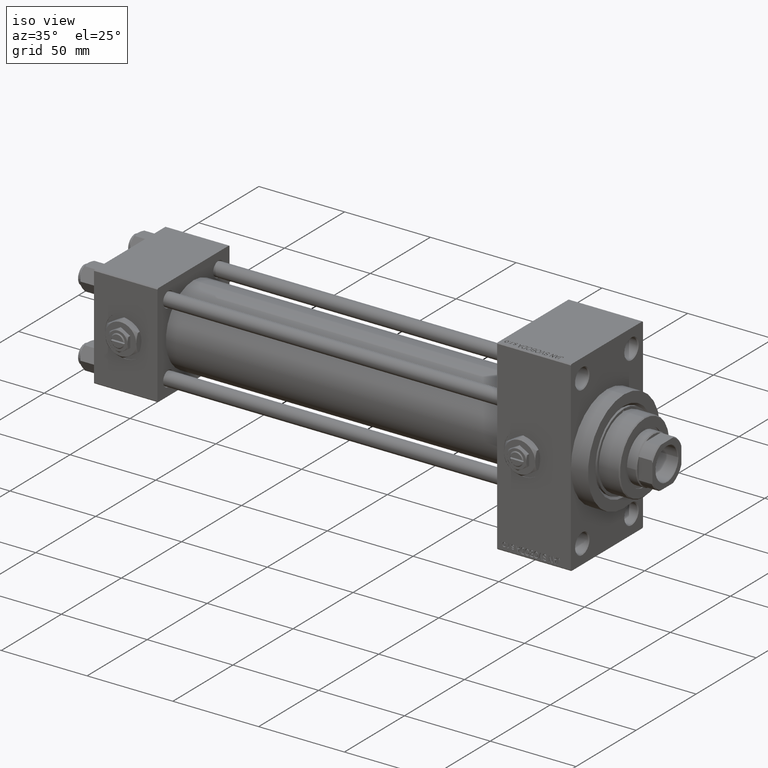
[diagram: clean part render]
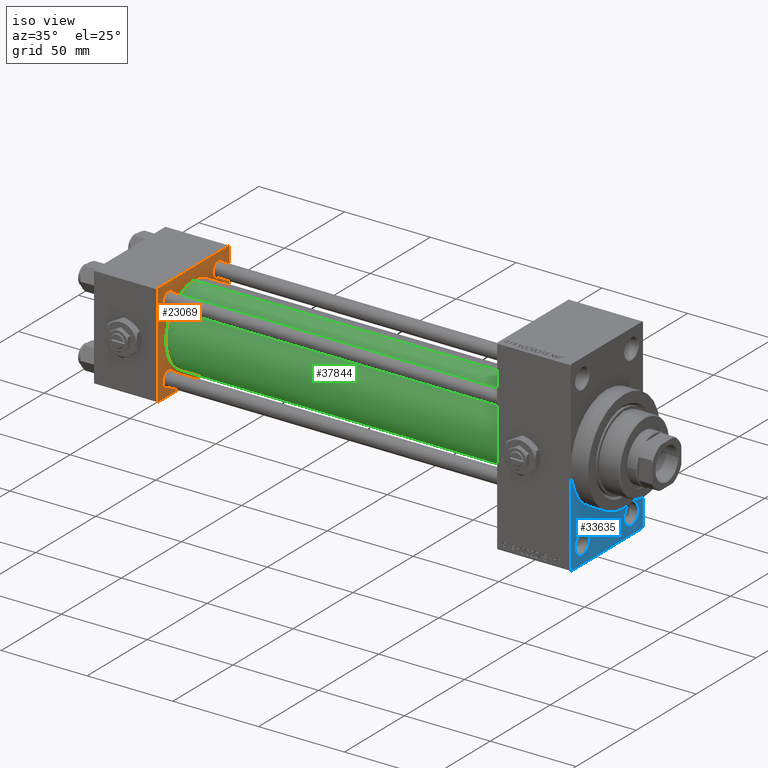
[diagram: same view with three faces highlighted in distinct colors, each labeled with its STEP entity id]
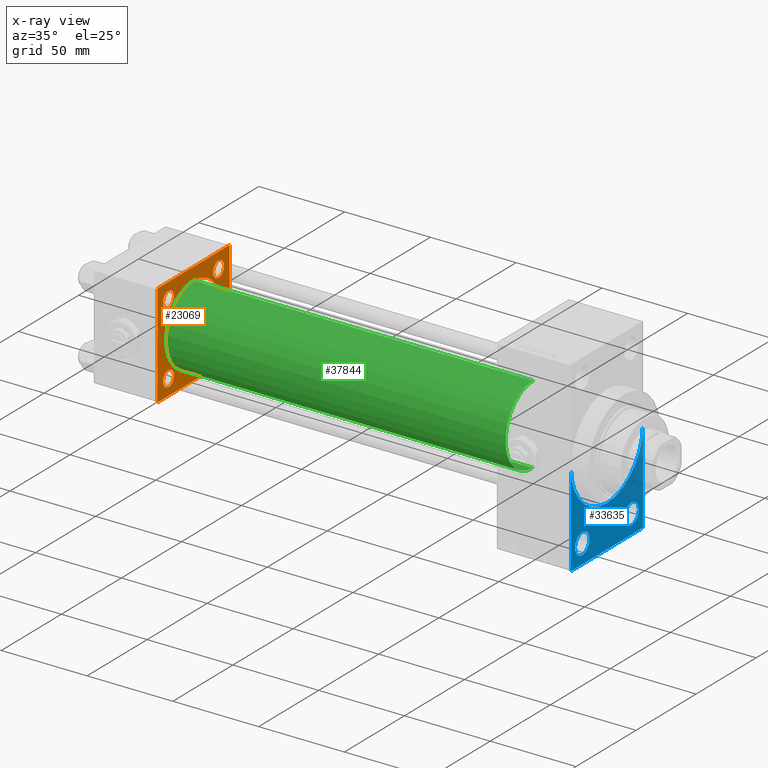
[diagram: x-ray of the same camera — body ghosted, the three highlighted faces saturated]
A machine part, iso view with three faces highlighted in distinct colors.
The next image is the same camera in x-ray (body ghosted, the three faces saturated) — at least one of them is partly hidden behind the body in this view.
Their STEP definitions:

[orange] entity #23069 — the highlighted planar face has unit normal (-1, 0, 0).
#52 = ORIENTED_EDGE ( 'NONE', *, *, #4383, .T. ) ;
#277 = CARTESIAN_POINT ( 'NONE',  ( 37.00000000000000000, 29.99999999999999289, 30.00000000000000000 ) ) ;
#494 = EDGE_LOOP ( 'NONE', ( #42556, #32387 ) ) ;
#504 = EDGE_CURVE ( 'NONE', #41330, #26003, #39535, .T. ) ;
#661 = CARTESIAN_POINT ( 'NONE',  ( 37.00000000000000000, 29.99999999999999289, -30.00000000000000000 ) ) ;
#917 = DIRECTION ( 'NONE',  ( 0.000000000000000000, 0.000000000000000000, 1.000000000000000000 ) ) ;
#941 = CARTESIAN_POINT ( 'NONE',  ( 37.00000000000000000, 20.84999999999999787, 25.35000000000000497 ) ) ;
#1071 = EDGE_CURVE ( 'NONE', #21487, #1513, #30667, .T. ) ;
#1513 = VERTEX_POINT ( 'NONE', #16069 ) ;
#2589 = CARTESIAN_POINT ( 'NONE',  ( 37.00000000000000000, -20.84999999999999076, 16.35000000000000142 ) ) ;
#2718 = CARTESIAN_POINT ( 'NONE',  ( 37.00000000000000711, -2.602085213965210642E-15, 23.00000000000000000 ) ) ;
#2784 = LINE ( 'NONE', #32874, #41670 ) ;
#3456 = CARTESIAN_POINT ( 'NONE',  ( 37.00000000000000000, 20.84999999999999787, 20.85000000000000142 ) ) ;
#3702 = CIRCLE ( 'NONE', #26949, 4.500000000000003553 ) ;
#4045 = ORIENTED_EDGE ( 'NONE', *, *, #27006, .T. ) ;
#4175 = ORIENTED_EDGE ( 'NONE', *, *, #8318, .T. ) ;
#4297 = FACE_BOUND ( 'NONE', #35256, .T. ) ;
#4374 = AXIS2_PLACEMENT_3D ( 'NONE', #6062, #5070, #5802 ) ;
#4383 = EDGE_CURVE ( 'NONE', #17724, #21237, #41177, .T. ) ;
#4762 = CARTESIAN_POINT ( 'NONE',  ( 37.00000000000000000, 20.84999999999999787, -20.85000000000000142 ) ) ;
#4948 = VERTEX_POINT ( 'NONE', #30465 ) ;
#5070 = DIRECTION ( 'NONE',  ( -1.000000000000000000, 0.000000000000000000, -0.000000000000000000 ) ) ;
#5161 = AXIS2_PLACEMENT_3D ( 'NONE', #3456, #45838, #30543 ) ;
#5301 = LINE ( 'NONE', #43903, #44220 ) ;
#5802 = DIRECTION ( 'NONE',  ( 0.000000000000000000, 0.000000000000000000, 1.000000000000000000 ) ) ;
#5851 = CARTESIAN_POINT ( 'NONE',  ( 37.00000000000000000, -20.84999999999999076, 20.85000000000000497 ) ) ;
#6062 = CARTESIAN_POINT ( 'NONE',  ( 37.00000000000000000, 20.84999999999999787, 20.85000000000000142 ) ) ;
#6249 = VERTEX_POINT ( 'NONE', #35162 ) ;
#6836 = VECTOR ( 'NONE', #23103, 1000.000000000000000 ) ;
#6990 = EDGE_LOOP ( 'NONE', ( #29220, #33628 ) ) ;
#7055 = CARTESIAN_POINT ( 'NONE',  ( 37.00000000000000000, -29.50000000000000000, -30.00000000000000711 ) ) ;
#7180 = ORIENTED_EDGE ( 'NONE', *, *, #9999, .T. ) ;
#8167 = DIRECTION ( 'NONE',  ( 0.000000000000000000, -1.000000000000000000, -1.156482317317871725E-16 ) ) ;
#8318 = EDGE_CURVE ( 'NONE', #48864, #4948, #45090, .T. ) ;
#8346 = LINE ( 'NONE', #16855, #35874 ) ;
#8458 = DIRECTION ( 'NONE',  ( -1.000000000000000000, 0.000000000000000000, -0.000000000000000000 ) ) ;
#8560 = VECTOR ( 'NONE', #14157, 999.9999999999998863 ) ;
#8737 = CARTESIAN_POINT ( 'NONE',  ( 37.00000000000000000, 20.84999999999999787, 16.34999999999999787 ) ) ;
#9633 = EDGE_CURVE ( 'NONE', #43434, #6249, #25363, .T. ) ;
#9697 = ORIENTED_EDGE ( 'NONE', *, *, #19472, .T. ) ;
#9821 = EDGE_CURVE ( 'NONE', #16755, #46251, #40725, .T. ) ;
#9999 = EDGE_CURVE ( 'NONE', #26003, #41330, #29383, .T. ) ;
#10148 = VERTEX_POINT ( 'NONE', #7055 ) ;
#10188 = CARTESIAN_POINT ( 'NONE',  ( 37.00000000000000000, 29.49999999999997868, -30.00000000000000000 ) ) ;
#11489 = EDGE_CURVE ( 'NONE', #43134, #11506, #30248, .T. ) ;
#11506 = VERTEX_POINT ( 'NONE', #2589 ) ;
#11594 = CARTESIAN_POINT ( 'NONE',  ( 37.00000000000000000, -20.84999999999999076, -25.35000000000000853 ) ) ;
#11613 = DIRECTION ( 'NONE',  ( 0.000000000000000000, -0.7071067811865474617, 0.7071067811865474617 ) ) ;
#11788 = AXIS2_PLACEMENT_3D ( 'NONE', #21377, #28154, #12620 ) ;
#12317 = AXIS2_PLACEMENT_3D ( 'NONE', #39769, #8458, #16233 ) ;
#12559 = DIRECTION ( 'NONE',  ( -0.000000000000000000, 0.000000000000000000, 1.000000000000000000 ) ) ;
#12620 = DIRECTION ( 'NONE',  ( 0.000000000000000000, 0.000000000000000000, 1.000000000000000000 ) ) ;
#12795 = DIRECTION ( 'NONE',  ( -1.000000000000000000, 0.000000000000000000, -0.000000000000000000 ) ) ;
#13263 = EDGE_CURVE ( 'NONE', #26499, #48864, #8346, .T. ) ;
#13494 = CARTESIAN_POINT ( 'NONE',  ( 37.00000000000000000, -29.49999999999998579, 29.99999999999999289 ) ) ;
#13617 = DIRECTION ( 'NONE',  ( -1.000000000000000000, 0.000000000000000000, -0.000000000000000000 ) ) ;
#13732 = VERTEX_POINT ( 'NONE', #35611 ) ;
#13824 = ORIENTED_EDGE ( 'NONE', *, *, #13263, .T. ) ;
#14157 = DIRECTION ( 'NONE',  ( -0.000000000000000000, 0.7071067811865574537, 0.7071067811865376918 ) ) ;
#14589 = CARTESIAN_POINT ( 'NONE',  ( 37.00000000000000000, -30.00000000000000000, 29.49999999999999289 ) ) ;
#14971 = ORIENTED_EDGE ( 'NONE', *, *, #34988, .T. ) ;
#15068 = ORIENTED_EDGE ( 'NONE', *, *, #44076, .F. ) ;
#15589 = PLANE ( 'NONE',  #33652 ) ;
#15966 = DIRECTION ( 'NONE',  ( 1.000000000000000000, -0.000000000000000000, 0.000000000000000000 ) ) ;
#16069 = CARTESIAN_POINT ( 'NONE',  ( 37.00000000000000000, 29.49999999999999289, 30.00000000000000000 ) ) ;
#16233 = DIRECTION ( 'NONE',  ( 0.000000000000000000, 0.000000000000000000, 1.000000000000000000 ) ) ;
#16283 = DIRECTION ( 'NONE',  ( 0.000000000000000000, 0.000000000000000000, 1.000000000000000000 ) ) ;
#16617 = DIRECTION ( 'NONE',  ( -0.000000000000000000, -0.7071067811865474617, -0.7071067811865474617 ) ) ;
#16755 = VERTEX_POINT ( 'NONE', #10188 ) ;
#16855 = CARTESIAN_POINT ( 'NONE',  ( 37.00000000000000000, -30.00000000000000000, 29.49999999999999289 ) ) ;
#17114 = CIRCLE ( 'NONE', #45143, 23.00000000000000000 ) ;
#17603 = ORIENTED_EDGE ( 'NONE', *, *, #11489, .T. ) ;
#17724 = VERTEX_POINT ( 'NONE', #941 ) ;
#17935 = VECTOR ( 'NONE', #11613, 1000.000000000000114 ) ;
#18087 = VECTOR ( 'NONE', #8167, 1000.000000000000000 ) ;
#19472 = EDGE_CURVE ( 'NONE', #4948, #10148, #2784, .T. ) ;
#19842 = FACE_OUTER_BOUND ( 'NONE', #46564, .T. ) ;
#20050 = DIRECTION ( 'NONE',  ( -1.000000000000000000, 0.000000000000000000, -0.000000000000000000 ) ) ;
#20598 = DIRECTION ( 'NONE',  ( 0.000000000000000000, -1.000000000000000000, -1.156482317317871725E-16 ) ) ;
#21146 = DIRECTION ( 'NONE',  ( 0.000000000000000000, 0.000000000000000000, 1.000000000000000000 ) ) ;
#21237 = VERTEX_POINT ( 'NONE', #8737 ) ;
#21377 = CARTESIAN_POINT ( 'NONE',  ( 37.00000000000000000, -20.84999999999999076, -20.85000000000000497 ) ) ;
#21487 = VERTEX_POINT ( 'NONE', #31022 ) ;
#22875 = AXIS2_PLACEMENT_3D ( 'NONE', #4762, #20050, #16283 ) ;
#23069 = ADVANCED_FACE ( 'NONE', ( #4297, #35361, #38890, #39603, #27131, #19842 ), #15589, .F. ) ;
#23103 = DIRECTION ( 'NONE',  ( 0.000000000000000000, 0.000000000000000000, -1.000000000000000000 ) ) ;
#23873 = ORIENTED_EDGE ( 'NONE', *, *, #41207, .T. ) ;
#24399 = CIRCLE ( 'NONE', #5161, 4.500000000000003553 ) ;
#25363 = CIRCLE ( 'NONE', #31753, 23.00000000000000000 ) ;
#26003 = VERTEX_POINT ( 'NONE', #11594 ) ;
#26499 = VERTEX_POINT ( 'NONE', #13494 ) ;
#26949 = AXIS2_PLACEMENT_3D ( 'NONE', #33575, #32596, #47893 ) ;
#27006 = EDGE_CURVE ( 'NONE', #1513, #26499, #5301, .T. ) ;
#27131 = FACE_BOUND ( 'NONE', #494, .T. ) ;
#28154 = DIRECTION ( 'NONE',  ( -1.000000000000000000, 0.000000000000000000, -0.000000000000000000 ) ) ;
#28183 = DIRECTION ( 'NONE',  ( -1.000000000000000000, 0.000000000000000000, -0.000000000000000000 ) ) ;
#29112 = DIRECTION ( 'NONE',  ( 0.000000000000000000, 0.7071067811865474617, -0.7071067811865474617 ) ) ;
#29220 = ORIENTED_EDGE ( 'NONE', *, *, #34812, .T. ) ;
#29383 = CIRCLE ( 'NONE', #11788, 4.500000000000003553 ) ;
#29484 = AXIS2_PLACEMENT_3D ( 'NONE', #5851, #28183, #21146 ) ;
#29685 = CARTESIAN_POINT ( 'NONE',  ( 37.00000000000000000, 20.84999999999999787, -25.35000000000000497 ) ) ;
#30248 = CIRCLE ( 'NONE', #47845, 4.500000000000003553 ) ;
#30337 = EDGE_CURVE ( 'NONE', #6249, #43434, #17114, .T. ) ;
#30465 = CARTESIAN_POINT ( 'NONE',  ( 37.00000000000000000, -30.00000000000000000, -29.50000000000001776 ) ) ;
#30543 = DIRECTION ( 'NONE',  ( 0.000000000000000000, 0.000000000000000000, 1.000000000000000000 ) ) ;
#30667 = LINE ( 'NONE', #45966, #17935 ) ;
#31022 = CARTESIAN_POINT ( 'NONE',  ( 37.00000000000000000, 29.99999999999999289, 29.50000000000000000 ) ) ;
#31753 = AXIS2_PLACEMENT_3D ( 'NONE', #46557, #15966, #917 ) ;
#31831 = CARTESIAN_POINT ( 'NONE',  ( 37.00000000000000000, -20.84999999999999076, -16.35000000000000142 ) ) ;
#32387 = ORIENTED_EDGE ( 'NONE', *, *, #30337, .F. ) ;
#32596 = DIRECTION ( 'NONE',  ( -1.000000000000000000, 0.000000000000000000, -0.000000000000000000 ) ) ;
#32874 = CARTESIAN_POINT ( 'NONE',  ( 37.00000000000000000, -29.50000000000001066, -30.00000000000000711 ) ) ;
#33528 = ORIENTED_EDGE ( 'NONE', *, *, #504, .T. ) ;
#33575 = CARTESIAN_POINT ( 'NONE',  ( 37.00000000000000000, 20.84999999999999787, -20.85000000000000142 ) ) ;
#33628 = ORIENTED_EDGE ( 'NONE', *, *, #47901, .T. ) ;
#33652 = AXIS2_PLACEMENT_3D ( 'NONE', #47153, #12795, #12559 ) ;
#33804 = DIRECTION ( 'NONE',  ( 0.000000000000000000, 0.000000000000000000, -1.000000000000000000 ) ) ;
#34378 = EDGE_LOOP ( 'NONE', ( #23873, #17603 ) ) ;
#34627 = ORIENTED_EDGE ( 'NONE', *, *, #9821, .T. ) ;
#34774 = CIRCLE ( 'NONE', #22875, 4.500000000000003553 ) ;
#34812 = EDGE_CURVE ( 'NONE', #46086, #13732, #34774, .T. ) ;
#34988 = EDGE_CURVE ( 'NONE', #21237, #17724, #24399, .T. ) ;
#35162 = CARTESIAN_POINT ( 'NONE',  ( 37.00000000000000711, 2.146024240737016609E-16, -23.00000000000000000 ) ) ;
#35256 = EDGE_LOOP ( 'NONE', ( #7180, #33528 ) ) ;
#35361 = FACE_BOUND ( 'NONE', #6990, .T. ) ;
#35570 = CARTESIAN_POINT ( 'NONE',  ( 37.00000000000000711, -2.602085213965210642E-15, 0.000000000000000000 ) ) ;
#35611 = CARTESIAN_POINT ( 'NONE',  ( 37.00000000000000000, 20.84999999999999787, -16.34999999999999787 ) ) ;
#35874 = VECTOR ( 'NONE', #16617, 1000.000000000000114 ) ;
#38890 = FACE_BOUND ( 'NONE', #34378, .T. ) ;
#39535 = CIRCLE ( 'NONE', #12317, 4.500000000000003553 ) ;
#39603 = FACE_BOUND ( 'NONE', #42706, .T. ) ;
#39769 = CARTESIAN_POINT ( 'NONE',  ( 37.00000000000000000, -20.84999999999999076, -20.85000000000000497 ) ) ;
#39878 = CIRCLE ( 'NONE', #29484, 4.500000000000003553 ) ;
#40685 = CARTESIAN_POINT ( 'NONE',  ( 37.00000000000000000, -20.84999999999999076, 20.85000000000000497 ) ) ;
#40725 = LINE ( 'NONE', #44981, #8560 ) ;
#41177 = CIRCLE ( 'NONE', #4374, 4.500000000000003553 ) ;
#41207 = EDGE_CURVE ( 'NONE', #11506, #43134, #39878, .T. ) ;
#41330 = VERTEX_POINT ( 'NONE', #31831 ) ;
#41670 = VECTOR ( 'NONE', #29112, 1000.000000000000114 ) ;
#42380 = CARTESIAN_POINT ( 'NONE',  ( 37.00000000000000000, -20.84999999999999076, 25.35000000000000853 ) ) ;
#42512 = LINE ( 'NONE', #661, #18087 ) ;
#42556 = ORIENTED_EDGE ( 'NONE', *, *, #9633, .F. ) ;
#42622 = LINE ( 'NONE', #277, #6836 ) ;
#42706 = EDGE_LOOP ( 'NONE', ( #14971, #52 ) ) ;
#43100 = EDGE_CURVE ( 'NONE', #21487, #46251, #42622, .T. ) ;
#43134 = VERTEX_POINT ( 'NONE', #42380 ) ;
#43434 = VERTEX_POINT ( 'NONE', #2718 ) ;
#43596 = DIRECTION ( 'NONE',  ( 0.000000000000000000, 0.000000000000000000, 1.000000000000000000 ) ) ;
#43903 = CARTESIAN_POINT ( 'NONE',  ( 37.00000000000000000, 29.99999999999999289, 30.00000000000000000 ) ) ;
#44076 = EDGE_CURVE ( 'NONE', #16755, #10148, #42512, .T. ) ;
#44220 = VECTOR ( 'NONE', #20598, 1000.000000000000000 ) ;
#44453 = DIRECTION ( 'NONE',  ( 0.000000000000000000, 0.000000000000000000, 1.000000000000000000 ) ) ;
#44981 = CARTESIAN_POINT ( 'NONE',  ( 37.00000000000000000, 29.99999999999999289, -29.50000000000000000 ) ) ;
#45090 = LINE ( 'NONE', #49373, #49327 ) ;
#45143 = AXIS2_PLACEMENT_3D ( 'NONE', #35570, #46893, #43596 ) ;
#45838 = DIRECTION ( 'NONE',  ( -1.000000000000000000, 0.000000000000000000, -0.000000000000000000 ) ) ;
#45966 = CARTESIAN_POINT ( 'NONE',  ( 37.00000000000000000, 29.49999999999999289, 30.00000000000000000 ) ) ;
#46086 = VERTEX_POINT ( 'NONE', #29685 ) ;
#46251 = VERTEX_POINT ( 'NONE', #48934 ) ;
#46557 = CARTESIAN_POINT ( 'NONE',  ( 37.00000000000000711, -2.602085213965210642E-15, 0.000000000000000000 ) ) ;
#46564 = EDGE_LOOP ( 'NONE', ( #15068, #34627, #46818, #48263, #4045, #13824, #4175, #9697 ) ) ;
#46818 = ORIENTED_EDGE ( 'NONE', *, *, #43100, .F. ) ;
#46893 = DIRECTION ( 'NONE',  ( 1.000000000000000000, -0.000000000000000000, 0.000000000000000000 ) ) ;
#47153 = CARTESIAN_POINT ( 'NONE',  ( 37.00000000000000000, 0.000000000000000000, 0.000000000000000000 ) ) ;
#47845 = AXIS2_PLACEMENT_3D ( 'NONE', #40685, #13617, #44453 ) ;
#47893 = DIRECTION ( 'NONE',  ( 0.000000000000000000, 0.000000000000000000, 1.000000000000000000 ) ) ;
#47901 = EDGE_CURVE ( 'NONE', #13732, #46086, #3702, .T. ) ;
#48263 = ORIENTED_EDGE ( 'NONE', *, *, #1071, .T. ) ;
#48864 = VERTEX_POINT ( 'NONE', #14589 ) ;
#48934 = CARTESIAN_POINT ( 'NONE',  ( 37.00000000000000000, 29.99999999999999289, -29.50000000000000000 ) ) ;
#49327 = VECTOR ( 'NONE', #33804, 1000.000000000000000 ) ;
#49373 = CARTESIAN_POINT ( 'NONE',  ( 37.00000000000000000, -30.00000000000000000, 29.99999999999999289 ) ) ;

[blue] entity #33635 — the highlighted planar face has unit normal (-1, 0, 0).
#90 = DIRECTION ( 'NONE',  ( 0.000000000000000000, 0.000000000000000000, 1.000000000000000000 ) ) ;
#506 = AXIS2_PLACEMENT_3D ( 'NONE', #29014, #29753, #10209 ) ;
#713 = DIRECTION ( 'NONE',  ( 0.000000000000000000, 0.7071067811865352493, -0.7071067811865597852 ) ) ;
#842 = EDGE_CURVE ( 'NONE', #31903, #42642, #13127, .T. ) ;
#1806 = CARTESIAN_POINT ( 'NONE',  ( 278.0000000000000000, 29.99999999999999645, -53.99999999999996447 ) ) ;
#2534 = CARTESIAN_POINT ( 'NONE',  ( 278.0000000000000000, 3.673940397442059178E-15, -30.00000000000000000 ) ) ;
#2563 = CIRCLE ( 'NONE', #25793, 30.00000000000000000 ) ;
#3392 = CARTESIAN_POINT ( 'NONE',  ( 278.0000000000000000, 0.000000000000000000, 0.000000000000000000 ) ) ;
#4786 = VERTEX_POINT ( 'NONE', #32814 ) ;
#4845 = VERTEX_POINT ( 'NONE', #41061 ) ;
#5242 = CARTESIAN_POINT ( 'NONE',  ( 278.0000000000000000, 20.50000000000000000, -49.50000000000019895 ) ) ;
#6212 = EDGE_CURVE ( 'NONE', #43380, #37330, #12432, .T. ) ;
#6282 = FACE_BOUND ( 'NONE', #36887, .T. ) ;
#6377 = ORIENTED_EDGE ( 'NONE', *, *, #26485, .F. ) ;
#7007 = PLANE ( 'NONE',  #30040 ) ;
#7505 = ORIENTED_EDGE ( 'NONE', *, *, #26458, .F. ) ;
#7668 = ORIENTED_EDGE ( 'NONE', *, *, #35037, .T. ) ;
#7855 = VERTEX_POINT ( 'NONE', #1806 ) ;
#8478 = ORIENTED_EDGE ( 'NONE', *, *, #48140, .T. ) ;
#8552 = VERTEX_POINT ( 'NONE', #48062 ) ;
#8928 = CARTESIAN_POINT ( 'NONE',  ( 278.0000000000000000, -29.50000000000002842, -54.50000000000000000 ) ) ;
#10209 = DIRECTION ( 'NONE',  ( 0.000000000000000000, 0.000000000000000000, 1.000000000000000000 ) ) ;
#10875 = CIRCLE ( 'NONE', #38928, 6.000000000000199840 ) ;
#11303 = DIRECTION ( 'NONE',  ( 0.000000000000000000, 0.000000000000000000, -1.000000000000000000 ) ) ;
#12432 = CIRCLE ( 'NONE', #46091, 6.000000000000199840 ) ;
#12530 = CARTESIAN_POINT ( 'NONE',  ( 278.0000000000000000, 0.000000000000000000, 0.000000000000000000 ) ) ;
#13127 = LINE ( 'NONE', #28432, #33135 ) ;
#13491 = EDGE_CURVE ( 'NONE', #46318, #4845, #26359, .T. ) ;
#13740 = DIRECTION ( 'NONE',  ( 0.000000000000000000, 0.000000000000000000, -1.000000000000000000 ) ) ;
#14045 = FACE_BOUND ( 'NONE', #39740, .T. ) ;
#14117 = ORIENTED_EDGE ( 'NONE', *, *, #6212, .T. ) ;
#15273 = CARTESIAN_POINT ( 'NONE',  ( 278.0000000000000000, -20.50000000000000000, -37.49999999999979394 ) ) ;
#16205 = ORIENTED_EDGE ( 'NONE', *, *, #43011, .T. ) ;
#16688 = VECTOR ( 'NONE', #11303, 1000.000000000000000 ) ;
#16750 = ORIENTED_EDGE ( 'NONE', *, *, #27465, .T. ) ;
#18550 = EDGE_CURVE ( 'NONE', #46318, #30051, #22432, .T. ) ;
#18598 = CIRCLE ( 'NONE', #41819, 6.000000000000199840 ) ;
#18687 = DIRECTION ( 'NONE',  ( 0.000000000000000000, 0.000000000000000000, -1.000000000000000000 ) ) ;
#18705 = CARTESIAN_POINT ( 'NONE',  ( 278.0000000000000000, -20.50000000000000000, -43.50000000000000000 ) ) ;
#18749 = EDGE_LOOP ( 'NONE', ( #21490, #7668, #29137, #16205, #6377, #7505, #47884 ) ) ;
#19023 = CARTESIAN_POINT ( 'NONE',  ( 278.0000000000000000, 20.50000000000000000, -43.50000000000000000 ) ) ;
#19146 = CARTESIAN_POINT ( 'NONE',  ( 278.0000000000000000, 20.50000000000000000, -43.50000000000000000 ) ) ;
#20055 = DIRECTION ( 'NONE',  ( 1.000000000000000000, 0.000000000000000000, 0.000000000000000000 ) ) ;
#21086 = CARTESIAN_POINT ( 'NONE',  ( 278.0000000000000000, 29.99999999999999645, -53.99999999999996447 ) ) ;
#21490 = ORIENTED_EDGE ( 'NONE', *, *, #13491, .T. ) ;
#22432 = CIRCLE ( 'NONE', #28050, 30.00000000000000000 ) ;
#22606 = VERTEX_POINT ( 'NONE', #15273 ) ;
#22702 = CARTESIAN_POINT ( 'NONE',  ( 278.0000000000000000, 29.99999999999999645, 54.49999999999999289 ) ) ;
#23039 = CARTESIAN_POINT ( 'NONE',  ( 278.0000000000000000, -29.50000000000002842, -54.50000000000000000 ) ) ;
#24534 = CIRCLE ( 'NONE', #506, 6.000000000000199840 ) ;
#25049 = DIRECTION ( 'NONE',  ( 1.000000000000000000, 0.000000000000000000, 0.000000000000000000 ) ) ;
#25793 = AXIS2_PLACEMENT_3D ( 'NONE', #3392, #25049, #13740 ) ;
#26118 = CARTESIAN_POINT ( 'NONE',  ( 278.0000000000000000, -30.00000000000000000, 0.000000000000000000 ) ) ;
#26359 = LINE ( 'NONE', #49166, #16688 ) ;
#26458 = EDGE_CURVE ( 'NONE', #30051, #8552, #2563, .T. ) ;
#26485 = EDGE_CURVE ( 'NONE', #8552, #7855, #32548, .T. ) ;
#26807 = VECTOR ( 'NONE', #713, 1000.000000000000000 ) ;
#27242 = CARTESIAN_POINT ( 'NONE',  ( 278.0000000000000000, 29.49999999999999645, -54.49999999999999289 ) ) ;
#27465 = EDGE_CURVE ( 'NONE', #37330, #43380, #18598, .T. ) ;
#28050 = AXIS2_PLACEMENT_3D ( 'NONE', #12530, #20055, #42377 ) ;
#28364 = DIRECTION ( 'NONE',  ( -0.000000000000000000, 0.7071067811865279218, 0.7071067811865672237 ) ) ;
#28432 = CARTESIAN_POINT ( 'NONE',  ( 278.0000000000000000, 29.99999999999999645, -54.49999999999999289 ) ) ;
#28543 = CARTESIAN_POINT ( 'NONE',  ( 278.0000000000000000, 20.50000000000000000, -37.49999999999979394 ) ) ;
#28850 = LINE ( 'NONE', #21086, #42860 ) ;
#29014 = CARTESIAN_POINT ( 'NONE',  ( 278.0000000000000000, -20.50000000000000000, -43.50000000000000000 ) ) ;
#29137 = ORIENTED_EDGE ( 'NONE', *, *, #842, .F. ) ;
#29341 = FACE_OUTER_BOUND ( 'NONE', #18749, .T. ) ;
#29585 = DIRECTION ( 'NONE',  ( -0.000000000000000000, 0.000000000000000000, 1.000000000000000000 ) ) ;
#29753 = DIRECTION ( 'NONE',  ( -1.000000000000000000, 0.000000000000000000, -0.000000000000000000 ) ) ;
#30040 = AXIS2_PLACEMENT_3D ( 'NONE', #44877, #44383, #29585 ) ;
#30051 = VERTEX_POINT ( 'NONE', #2534 ) ;
#30238 = DIRECTION ( 'NONE',  ( 0.000000000000000000, 0.000000000000000000, 1.000000000000000000 ) ) ;
#30800 = DIRECTION ( 'NONE',  ( 0.000000000000000000, 0.000000000000000000, 1.000000000000000000 ) ) ;
#31903 = VERTEX_POINT ( 'NONE', #27242 ) ;
#32548 = LINE ( 'NONE', #22702, #36979 ) ;
#32814 = CARTESIAN_POINT ( 'NONE',  ( 278.0000000000000000, -20.50000000000000000, -49.50000000000019895 ) ) ;
#33135 = VECTOR ( 'NONE', #43723, 1000.000000000000000 ) ;
#33635 = ADVANCED_FACE ( 'NONE', ( #6282, #14045, #29341 ), #7007, .F. ) ;
#33984 = DIRECTION ( 'NONE',  ( -1.000000000000000000, 0.000000000000000000, -0.000000000000000000 ) ) ;
#34309 = DIRECTION ( 'NONE',  ( -1.000000000000000000, 0.000000000000000000, -0.000000000000000000 ) ) ;
#34426 = DIRECTION ( 'NONE',  ( -1.000000000000000000, 0.000000000000000000, -0.000000000000000000 ) ) ;
#35037 = EDGE_CURVE ( 'NONE', #4845, #42642, #38045, .T. ) ;
#36887 = EDGE_LOOP ( 'NONE', ( #8478, #44567 ) ) ;
#36979 = VECTOR ( 'NONE', #18687, 1000.000000000000000 ) ;
#37330 = VERTEX_POINT ( 'NONE', #28543 ) ;
#38045 = LINE ( 'NONE', #23039, #26807 ) ;
#38775 = EDGE_CURVE ( 'NONE', #22606, #4786, #10875, .T. ) ;
#38928 = AXIS2_PLACEMENT_3D ( 'NONE', #18705, #33984, #30238 ) ;
#39740 = EDGE_LOOP ( 'NONE', ( #14117, #16750 ) ) ;
#41061 = CARTESIAN_POINT ( 'NONE',  ( 278.0000000000000000, -30.00000000000000000, -54.00000000000001421 ) ) ;
#41819 = AXIS2_PLACEMENT_3D ( 'NONE', #19023, #34309, #30800 ) ;
#42377 = DIRECTION ( 'NONE',  ( 0.000000000000000000, 0.000000000000000000, -1.000000000000000000 ) ) ;
#42642 = VERTEX_POINT ( 'NONE', #8928 ) ;
#42860 = VECTOR ( 'NONE', #28364, 1000.000000000000000 ) ;
#43011 = EDGE_CURVE ( 'NONE', #31903, #7855, #28850, .T. ) ;
#43380 = VERTEX_POINT ( 'NONE', #5242 ) ;
#43723 = DIRECTION ( 'NONE',  ( 0.000000000000000000, -1.000000000000000000, -1.156482317317871478E-16 ) ) ;
#44383 = DIRECTION ( 'NONE',  ( -1.000000000000000000, 0.000000000000000000, -0.000000000000000000 ) ) ;
#44567 = ORIENTED_EDGE ( 'NONE', *, *, #38775, .T. ) ;
#44877 = CARTESIAN_POINT ( 'NONE',  ( 278.0000000000000000, 0.000000000000000000, 0.000000000000000000 ) ) ;
#46091 = AXIS2_PLACEMENT_3D ( 'NONE', #19146, #34426, #90 ) ;
#46318 = VERTEX_POINT ( 'NONE', #26118 ) ;
#47884 = ORIENTED_EDGE ( 'NONE', *, *, #18550, .F. ) ;
#48062 = CARTESIAN_POINT ( 'NONE',  ( 278.0000000000000000, 30.00000000000000000, 0.000000000000000000 ) ) ;
#48140 = EDGE_CURVE ( 'NONE', #4786, #22606, #24534, .T. ) ;
#49166 = CARTESIAN_POINT ( 'NONE',  ( 278.0000000000000000, -30.00000000000000000, 54.50000000000000000 ) ) ;

[green] entity #37844 — the highlighted cylindrical surface (partial cylindrical patch) has radius 23 mm, axis along (-1, -0, -0).
#917 = DIRECTION ( 'NONE',  ( 0.000000000000000000, 0.000000000000000000, 1.000000000000000000 ) ) ;
#2718 = CARTESIAN_POINT ( 'NONE',  ( 37.00000000000000711, -2.602085213965210642E-15, 23.00000000000000000 ) ) ;
#3587 = EDGE_LOOP ( 'NONE', ( #30750, #38126, #45467, #30930 ) ) ;
#6249 = VERTEX_POINT ( 'NONE', #35162 ) ;
#6303 = LINE ( 'NONE', #29361, #24507 ) ;
#9633 = EDGE_CURVE ( 'NONE', #43434, #6249, #25363, .T. ) ;
#12093 = LINE ( 'NONE', #27394, #34704 ) ;
#14034 = CARTESIAN_POINT ( 'NONE',  ( 235.0000000000000284, -2.602085213965210642E-15, 0.000000000000000000 ) ) ;
#14387 = VERTEX_POINT ( 'NONE', #37533 ) ;
#14612 = CARTESIAN_POINT ( 'NONE',  ( 235.0000000000000284, -2.602085213965210642E-15, 0.000000000000000000 ) ) ;
#14865 = DIRECTION ( 'NONE',  ( -1.000000000000000000, -0.000000000000000000, -0.000000000000000000 ) ) ;
#15966 = DIRECTION ( 'NONE',  ( 1.000000000000000000, -0.000000000000000000, 0.000000000000000000 ) ) ;
#18136 = DIRECTION ( 'NONE',  ( 0.000000000000000000, 0.000000000000000000, 1.000000000000000000 ) ) ;
#18891 = FACE_OUTER_BOUND ( 'NONE', #3587, .T. ) ;
#22143 = CYLINDRICAL_SURFACE ( 'NONE', #42070, 23.00000000000000000 ) ;
#24507 = VECTOR ( 'NONE', #48416, 1000.000000000000000 ) ;
#25363 = CIRCLE ( 'NONE', #31753, 23.00000000000000000 ) ;
#25590 = DIRECTION ( 'NONE',  ( 0.000000000000000000, 0.000000000000000000, -1.000000000000000000 ) ) ;
#26062 = DIRECTION ( 'NONE',  ( 1.000000000000000000, 0.000000000000000000, 0.000000000000000000 ) ) ;
#27394 = CARTESIAN_POINT ( 'NONE',  ( 235.0000000000000284, -2.602085213965210642E-15, 23.00000000000000000 ) ) ;
#29019 = EDGE_CURVE ( 'NONE', #14387, #43434, #12093, .T. ) ;
#29361 = CARTESIAN_POINT ( 'NONE',  ( 235.0000000000000284, 2.146024240737016609E-16, -23.00000000000000000 ) ) ;
#30750 = ORIENTED_EDGE ( 'NONE', *, *, #38074, .F. ) ;
#30930 = ORIENTED_EDGE ( 'NONE', *, *, #9633, .T. ) ;
#31533 = VERTEX_POINT ( 'NONE', #37313 ) ;
#31753 = AXIS2_PLACEMENT_3D ( 'NONE', #46557, #15966, #917 ) ;
#34704 = VECTOR ( 'NONE', #42672, 1000.000000000000000 ) ;
#35162 = CARTESIAN_POINT ( 'NONE',  ( 37.00000000000000711, 2.146024240737016609E-16, -23.00000000000000000 ) ) ;
#37313 = CARTESIAN_POINT ( 'NONE',  ( 235.0000000000000284, 2.146024240737016609E-16, -23.00000000000000000 ) ) ;
#37533 = CARTESIAN_POINT ( 'NONE',  ( 235.0000000000000284, -2.602085213965210642E-15, 23.00000000000000000 ) ) ;
#37844 = ADVANCED_FACE ( 'NONE', ( #18891 ), #22143, .T. ) ;
#38074 = EDGE_CURVE ( 'NONE', #31533, #6249, #6303, .T. ) ;
#38126 = ORIENTED_EDGE ( 'NONE', *, *, #47836, .F. ) ;
#42070 = AXIS2_PLACEMENT_3D ( 'NONE', #14612, #14865, #18136 ) ;
#42672 = DIRECTION ( 'NONE',  ( -1.000000000000000000, -0.000000000000000000, -0.000000000000000000 ) ) ;
#43434 = VERTEX_POINT ( 'NONE', #2718 ) ;
#45467 = ORIENTED_EDGE ( 'NONE', *, *, #29019, .T. ) ;
#46178 = AXIS2_PLACEMENT_3D ( 'NONE', #14034, #26062, #25590 ) ;
#46557 = CARTESIAN_POINT ( 'NONE',  ( 37.00000000000000711, -2.602085213965210642E-15, 0.000000000000000000 ) ) ;
#47836 = EDGE_CURVE ( 'NONE', #14387, #31533, #48543, .T. ) ;
#48416 = DIRECTION ( 'NONE',  ( -1.000000000000000000, -0.000000000000000000, -0.000000000000000000 ) ) ;
#48543 = CIRCLE ( 'NONE', #46178, 23.00000000000000000 ) ;